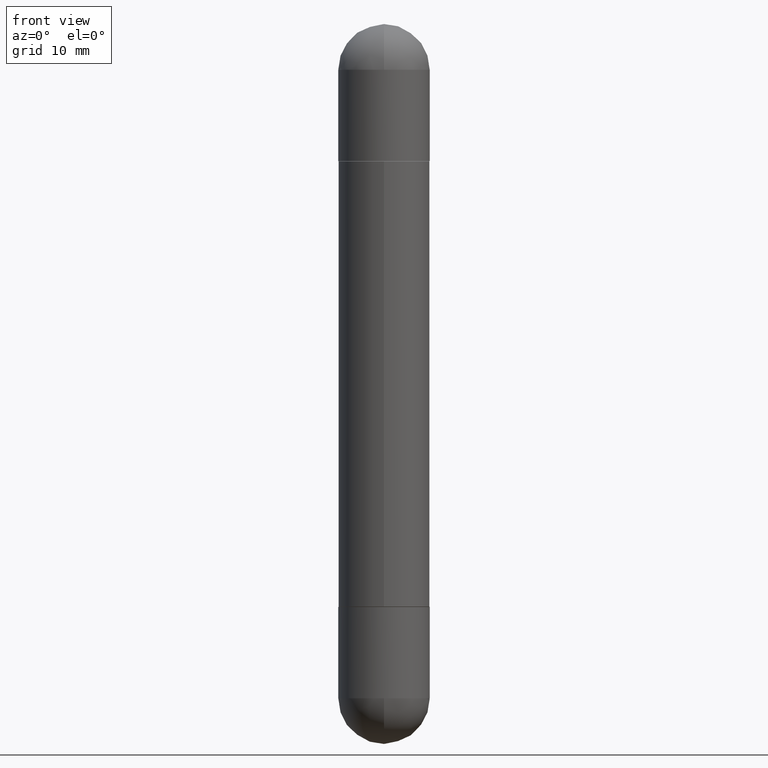
[diagram: clean part render]
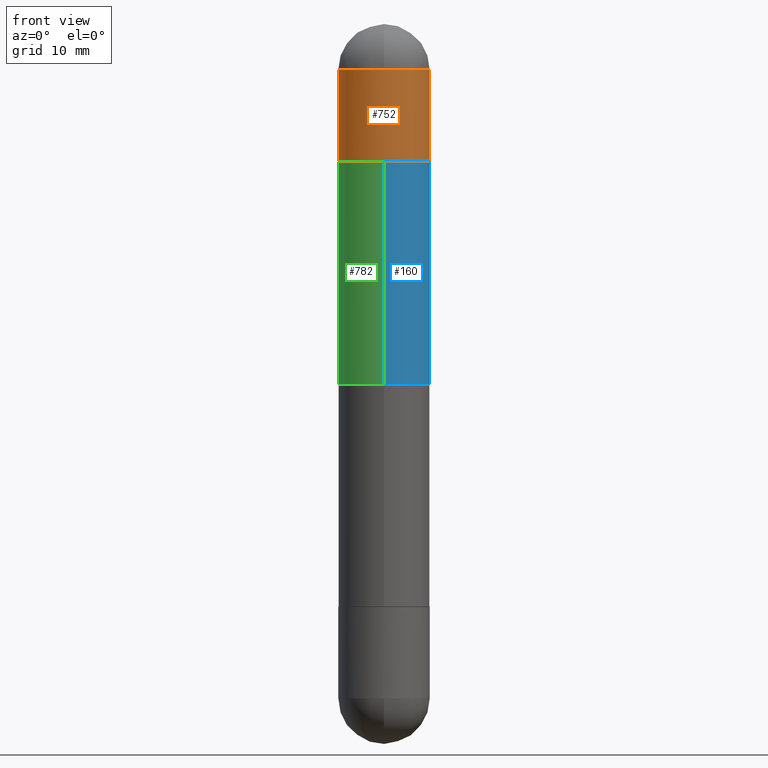
[diagram: same view with three faces highlighted in distinct colors, each labeled with its STEP entity id]
A machine part, front view with three faces highlighted in distinct colors.
Their STEP definitions:

[orange] entity #752 — the highlighted cylindrical surface (partial cylindrical patch) has radius 4.0005 mm, axis along (-0, 0, -1).
#5 = EDGE_CURVE ( 'NONE', #521, #134, #692, .T. ) ;
#13 = DIRECTION ( 'NONE',  ( 2.445468806185136597E-29, -3.491481338843145583E-15, 1.000000000000000000 ) ) ;
#26 = CIRCLE ( 'NONE', #576, 0.1575000000000000011 ) ;
#28 = VECTOR ( 'NONE', #645, 39.37007874015748143 ) ;
#40 = CARTESIAN_POINT ( 'NONE',  ( -0.1575000000000000011, -6.479750682414990676E-15, -0.1575000000000001676 ) ) ;
#51 = VERTEX_POINT ( 'NONE', #335 ) ;
#62 = ORIENTED_EDGE ( 'NONE', *, *, #5, .T. ) ;
#63 = DIRECTION ( 'NONE',  ( -2.445468806185136877E-29, 3.491481338843145188E-15, -1.000000000000000000 ) ) ;
#67 = CYLINDRICAL_SURFACE ( 'NONE', #154, 0.1575000000000000011 ) ;
#125 = LINE ( 'NONE', #140, #482 ) ;
#134 = VERTEX_POINT ( 'NONE', #596 ) ;
#140 = CARTESIAN_POINT ( 'NONE',  ( 0.1575000000000000011, -1.099816621735586889E-15, -2.480300000000000171 ) ) ;
#154 = AXIS2_PLACEMENT_3D ( 'NONE', #243, #768, #701 ) ;
#209 = CARTESIAN_POINT ( 'NONE',  ( 4.910256815939136430E-29, -7.010545380263152499E-15, -0.4724000000000001531 ) ) ;
#238 = EDGE_LOOP ( 'NONE', ( #693, #483, #62, #570, #312 ) ) ;
#243 = CARTESIAN_POINT ( 'NONE',  ( 0.000000000000000000, 0.000000000000000000, -2.480300000000000171 ) ) ;
#247 = DIRECTION ( 'NONE',  ( 1.000000000000000000, -6.982962677686268288E-15, 0.000000000000000000 ) ) ;
#259 = AXIS2_PLACEMENT_3D ( 'NONE', #750, #755, #636 ) ;
#263 = EDGE_CURVE ( 'NONE', #546, #51, #26, .T. ) ;
#312 = ORIENTED_EDGE ( 'NONE', *, *, #728, .F. ) ;
#324 = FACE_OUTER_BOUND ( 'NONE', #238, .T. ) ;
#335 = CARTESIAN_POINT ( 'NONE',  ( -1.080528434648961545E-15, -0.1575000000000084388, -0.1575000000000007228 ) ) ;
#405 = CARTESIAN_POINT ( 'NONE',  ( 0.1575000000000000011, -8.660095738799594725E-15, -0.1575000000000001676 ) ) ;
#448 = VERTEX_POINT ( 'NONE', #405 ) ;
#455 = DIRECTION ( 'NONE',  ( 2.445468806185136597E-29, -3.491481338843145583E-15, 1.000000000000000000 ) ) ;
#462 = DIRECTION ( 'NONE',  ( 1.000000000000000000, -6.982962677686268288E-15, 0.000000000000000000 ) ) ;
#482 = VECTOR ( 'NONE', #63, 39.37007874015748143 ) ;
#483 = ORIENTED_EDGE ( 'NONE', *, *, #703, .T. ) ;
#485 = CARTESIAN_POINT ( 'NONE',  ( -0.1575000000000000011, -6.479750682414989099E-15, -0.4724000000000001531 ) ) ;
#499 = LINE ( 'NONE', #503, #28 ) ;
#503 = CARTESIAN_POINT ( 'NONE',  ( -0.1575000000000000011, 1.080528434649016174E-15, -2.480300000000000171 ) ) ;
#521 = VERTEX_POINT ( 'NONE', #485 ) ;
#522 = AXIS2_PLACEMENT_3D ( 'NONE', #209, #13, #462 ) ;
#546 = VERTEX_POINT ( 'NONE', #40 ) ;
#570 = ORIENTED_EDGE ( 'NONE', *, *, #719, .F. ) ;
#576 = AXIS2_PLACEMENT_3D ( 'NONE', #623, #455, #247 ) ;
#596 = CARTESIAN_POINT ( 'NONE',  ( 0.1575000000000000011, -8.110362001998739191E-15, -0.4724000000000001531 ) ) ;
#623 = CARTESIAN_POINT ( 'NONE',  ( 5.680334943006836279E-29, -8.110012853864858834E-15, -0.1575000000000001676 ) ) ;
#636 = DIRECTION ( 'NONE',  ( 1.000000000000000000, -6.982962677686268288E-15, 0.000000000000000000 ) ) ;
#645 = DIRECTION ( 'NONE',  ( -2.445468806185136877E-29, 3.491481338843145188E-15, -1.000000000000000000 ) ) ;
#692 = CIRCLE ( 'NONE', #522, 0.1575000000000000011 ) ;
#693 = ORIENTED_EDGE ( 'NONE', *, *, #263, .F. ) ;
#695 = CIRCLE ( 'NONE', #259, 0.1575000000000000011 ) ;
#701 = DIRECTION ( 'NONE',  ( 1.000000000000000000, -6.982962677686265922E-15, 0.000000000000000000 ) ) ;
#703 = EDGE_CURVE ( 'NONE', #546, #521, #499, .T. ) ;
#719 = EDGE_CURVE ( 'NONE', #448, #134, #125, .T. ) ;
#728 = EDGE_CURVE ( 'NONE', #51, #448, #695, .T. ) ;
#750 = CARTESIAN_POINT ( 'NONE',  ( 5.680334943006836279E-29, -8.110012853864858834E-15, -0.1575000000000001676 ) ) ;
#752 = ADVANCED_FACE ( 'NONE', ( #324 ), #67, .T. ) ;
#755 = DIRECTION ( 'NONE',  ( 2.445468806185136597E-29, -3.491481338843145583E-15, 1.000000000000000000 ) ) ;
#768 = DIRECTION ( 'NONE',  ( -2.445468806185136597E-29, 3.491481338843145583E-15, -1.000000000000000000 ) ) ;

[blue] entity #160 — the highlighted cylindrical surface (partial cylindrical patch) has radius 4.0005 mm, axis along (-0, 0, -1).
#38 = CIRCLE ( 'NONE', #424, 0.1575000000000001399 ) ;
#50 = ORIENTED_EDGE ( 'NONE', *, *, #548, .F. ) ;
#57 = EDGE_LOOP ( 'NONE', ( #670, #50, #396, #369 ) ) ;
#61 = CYLINDRICAL_SURFACE ( 'NONE', #655, 0.1575000000000001399 ) ;
#81 = CARTESIAN_POINT ( 'NONE',  ( 3.032892176180250989E-29, -4.329754314344569209E-15, -1.240150000000000086 ) ) ;
#101 = CARTESIAN_POINT ( 'NONE',  ( -1.099816621735547840E-15, -0.1575000000000044698, -1.240150000000000086 ) ) ;
#135 = DIRECTION ( 'NONE',  ( -2.445584950352982136E-29, 3.491315013784275228E-15, -1.000000000000000000 ) ) ;
#160 = ADVANCED_FACE ( 'NONE', ( #788 ), #61, .T. ) ;
#161 = VERTEX_POINT ( 'NONE', #280 ) ;
#164 = DIRECTION ( 'NONE',  ( -6.982962677686265922E-15, -1.000000000000000000, -3.469013325287948560E-15 ) ) ;
#231 = EDGE_CURVE ( 'NONE', #161, #528, #38, .T. ) ;
#244 = AXIS2_PLACEMENT_3D ( 'NONE', #480, #356, #164 ) ;
#280 = CARTESIAN_POINT ( 'NONE',  ( 1.080528434649065872E-15, 0.1574999999999957823, -1.240150000000000086 ) ) ;
#304 = CARTESIAN_POINT ( 'NONE',  ( -1.099816621735587677E-15, -0.1575000000000001399, -2.480300000000001059 ) ) ;
#330 = DIRECTION ( 'NONE',  ( -1.000000000000000000, 0.000000000000000000, 0.000000000000000000 ) ) ;
#356 = DIRECTION ( 'NONE',  ( 2.445584950352982136E-29, -3.491315013784275228E-15, 1.000000000000000000 ) ) ;
#361 = VECTOR ( 'NONE', #540, 39.37007874015748143 ) ;
#369 = ORIENTED_EDGE ( 'NONE', *, *, #231, .F. ) ;
#385 = DIRECTION ( 'NONE',  ( -0.000000000000000000, -0.000000000000000000, -1.000000000000000000 ) ) ;
#396 = ORIENTED_EDGE ( 'NONE', *, *, #776, .T. ) ;
#419 = CARTESIAN_POINT ( 'NONE',  ( 1.080528434649016963E-15, 0.1575000000000001399, -2.480299999999999727 ) ) ;
#424 = AXIS2_PLACEMENT_3D ( 'NONE', #81, #385, #330 ) ;
#470 = CIRCLE ( 'NONE', #244, 0.1575000000000002232 ) ;
#475 = VERTEX_POINT ( 'NONE', #652 ) ;
#480 = CARTESIAN_POINT ( 'NONE',  ( 4.908044436863399835E-29, -7.006720101163662499E-15, -0.4734000000000002095 ) ) ;
#495 = DIRECTION ( 'NONE',  ( -2.445584950352982136E-29, 3.491315013784275228E-15, -1.000000000000000000 ) ) ;
#516 = LINE ( 'NONE', #304, #577 ) ;
#528 = VERTEX_POINT ( 'NONE', #101 ) ;
#540 = DIRECTION ( 'NONE',  ( -2.445584950352982136E-29, 3.491315013784275228E-15, -1.000000000000000000 ) ) ;
#544 = CARTESIAN_POINT ( 'NONE',  ( 1.080528434649066858E-15, 0.1574999999999932287, -0.4733999999999996544 ) ) ;
#545 = DIRECTION ( 'NONE',  ( -6.982962677686265133E-15, -1.000000000000000000, -3.469013325287950138E-15 ) ) ;
#548 = EDGE_CURVE ( 'NONE', #475, #569, #470, .T. ) ;
#555 = CARTESIAN_POINT ( 'NONE',  ( 0.000000000000000000, 0.000000000000000000, -2.480300000000000171 ) ) ;
#569 = VERTEX_POINT ( 'NONE', #544 ) ;
#577 = VECTOR ( 'NONE', #135, 39.37007874015748143 ) ;
#638 = EDGE_CURVE ( 'NONE', #569, #161, #794, .T. ) ;
#652 = CARTESIAN_POINT ( 'NONE',  ( -1.099816621735539754E-15, -0.1575000000000072453, -0.4734000000000007646 ) ) ;
#655 = AXIS2_PLACEMENT_3D ( 'NONE', #555, #495, #545 ) ;
#670 = ORIENTED_EDGE ( 'NONE', *, *, #638, .F. ) ;
#776 = EDGE_CURVE ( 'NONE', #475, #528, #516, .T. ) ;
#788 = FACE_OUTER_BOUND ( 'NONE', #57, .T. ) ;
#794 = LINE ( 'NONE', #419, #361 ) ;

[green] entity #782 — the highlighted cylindrical surface (partial cylindrical patch) has radius 4.0005 mm, axis along (-0, 0, -1).
#3 = CARTESIAN_POINT ( 'NONE',  ( 3.032892176180250989E-29, -4.329754314344569209E-15, -1.240150000000000086 ) ) ;
#16 = DIRECTION ( 'NONE',  ( -2.445584950352982136E-29, 3.491315013784275228E-15, -1.000000000000000000 ) ) ;
#101 = CARTESIAN_POINT ( 'NONE',  ( -1.099816621735547840E-15, -0.1575000000000044698, -1.240150000000000086 ) ) ;
#119 = ORIENTED_EDGE ( 'NONE', *, *, #170, .F. ) ;
#131 = FACE_OUTER_BOUND ( 'NONE', #185, .T. ) ;
#135 = DIRECTION ( 'NONE',  ( -2.445584950352982136E-29, 3.491315013784275228E-15, -1.000000000000000000 ) ) ;
#161 = VERTEX_POINT ( 'NONE', #280 ) ;
#170 = EDGE_CURVE ( 'NONE', #569, #475, #469, .T. ) ;
#171 = ORIENTED_EDGE ( 'NONE', *, *, #638, .T. ) ;
#185 = EDGE_LOOP ( 'NONE', ( #119, #171, #211, #206 ) ) ;
#206 = ORIENTED_EDGE ( 'NONE', *, *, #776, .F. ) ;
#211 = ORIENTED_EDGE ( 'NONE', *, *, #347, .F. ) ;
#280 = CARTESIAN_POINT ( 'NONE',  ( 1.080528434649065872E-15, 0.1574999999999957823, -1.240150000000000086 ) ) ;
#293 = AXIS2_PLACEMENT_3D ( 'NONE', #807, #751, #793 ) ;
#304 = CARTESIAN_POINT ( 'NONE',  ( -1.099816621735587677E-15, -0.1575000000000001399, -2.480300000000001059 ) ) ;
#315 = CARTESIAN_POINT ( 'NONE',  ( 0.000000000000000000, 0.000000000000000000, -2.480300000000000171 ) ) ;
#325 = AXIS2_PLACEMENT_3D ( 'NONE', #3, #504, #445 ) ;
#347 = EDGE_CURVE ( 'NONE', #528, #161, #376, .T. ) ;
#361 = VECTOR ( 'NONE', #540, 39.37007874015748143 ) ;
#376 = CIRCLE ( 'NONE', #325, 0.1575000000000001399 ) ;
#384 = CYLINDRICAL_SURFACE ( 'NONE', #644, 0.1575000000000001399 ) ;
#419 = CARTESIAN_POINT ( 'NONE',  ( 1.080528434649016963E-15, 0.1575000000000001399, -2.480299999999999727 ) ) ;
#445 = DIRECTION ( 'NONE',  ( -1.000000000000000000, 0.000000000000000000, 0.000000000000000000 ) ) ;
#469 = CIRCLE ( 'NONE', #293, 0.1575000000000002232 ) ;
#475 = VERTEX_POINT ( 'NONE', #652 ) ;
#504 = DIRECTION ( 'NONE',  ( -0.000000000000000000, -0.000000000000000000, -1.000000000000000000 ) ) ;
#516 = LINE ( 'NONE', #304, #577 ) ;
#528 = VERTEX_POINT ( 'NONE', #101 ) ;
#540 = DIRECTION ( 'NONE',  ( -2.445584950352982136E-29, 3.491315013784275228E-15, -1.000000000000000000 ) ) ;
#544 = CARTESIAN_POINT ( 'NONE',  ( 1.080528434649066858E-15, 0.1574999999999932287, -0.4733999999999996544 ) ) ;
#569 = VERTEX_POINT ( 'NONE', #544 ) ;
#577 = VECTOR ( 'NONE', #135, 39.37007874015748143 ) ;
#638 = EDGE_CURVE ( 'NONE', #569, #161, #794, .T. ) ;
#644 = AXIS2_PLACEMENT_3D ( 'NONE', #315, #16, #772 ) ;
#652 = CARTESIAN_POINT ( 'NONE',  ( -1.099816621735539754E-15, -0.1575000000000072453, -0.4734000000000007646 ) ) ;
#751 = DIRECTION ( 'NONE',  ( 2.445584950352982136E-29, -3.491315013784275228E-15, 1.000000000000000000 ) ) ;
#772 = DIRECTION ( 'NONE',  ( -6.982962677686265133E-15, -1.000000000000000000, -3.469013325287950138E-15 ) ) ;
#776 = EDGE_CURVE ( 'NONE', #475, #528, #516, .T. ) ;
#782 = ADVANCED_FACE ( 'NONE', ( #131 ), #384, .T. ) ;
#793 = DIRECTION ( 'NONE',  ( -6.982962677686265922E-15, -1.000000000000000000, -3.469013325287948560E-15 ) ) ;
#794 = LINE ( 'NONE', #419, #361 ) ;
#807 = CARTESIAN_POINT ( 'NONE',  ( 4.908044436863399835E-29, -7.006720101163662499E-15, -0.4734000000000002095 ) ) ;